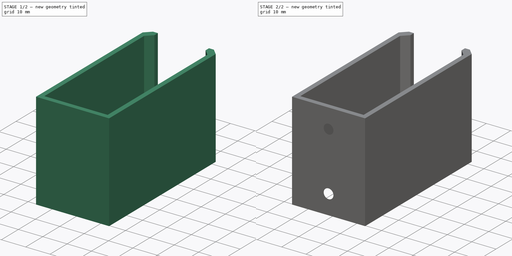
[diagram: build sequence overview — one tinted view per stage of 2, left to right]
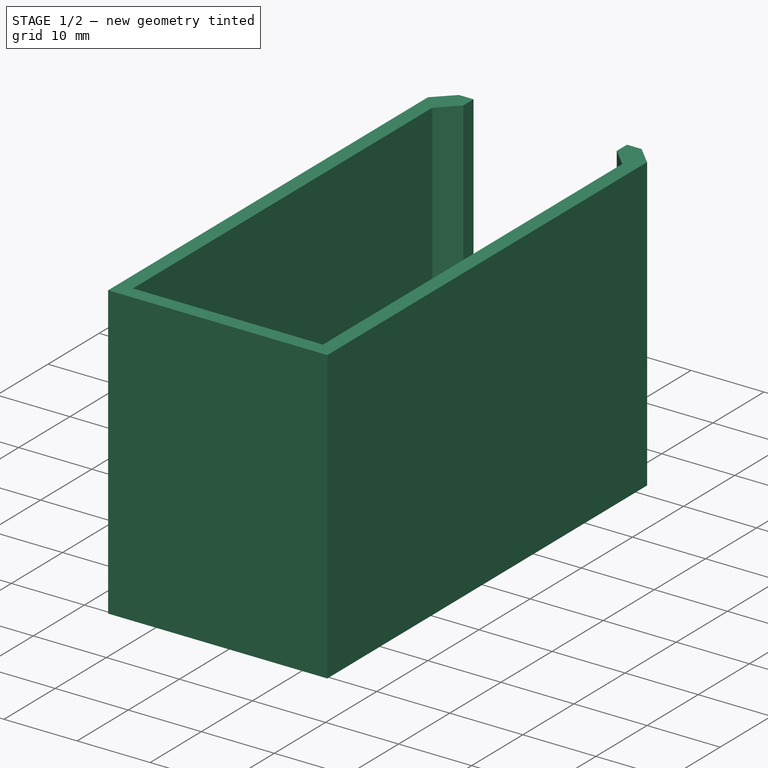
[diagram: stage 1 of 2 — iso view after this stage's code; geometry added in this stage tinted green]
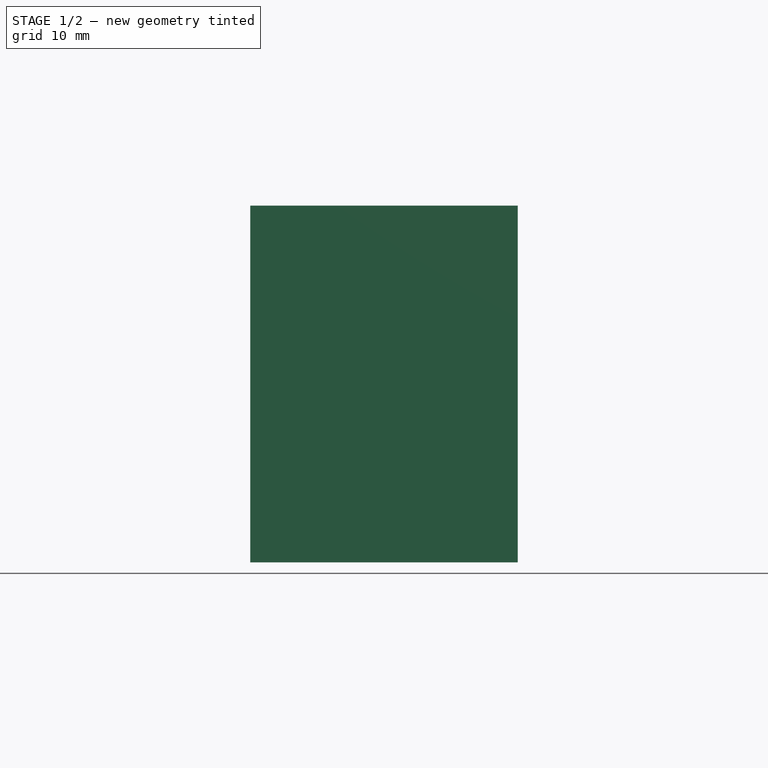
[diagram: stage 1 of 2 — front view after this stage's code; geometry added in this stage tinted green]
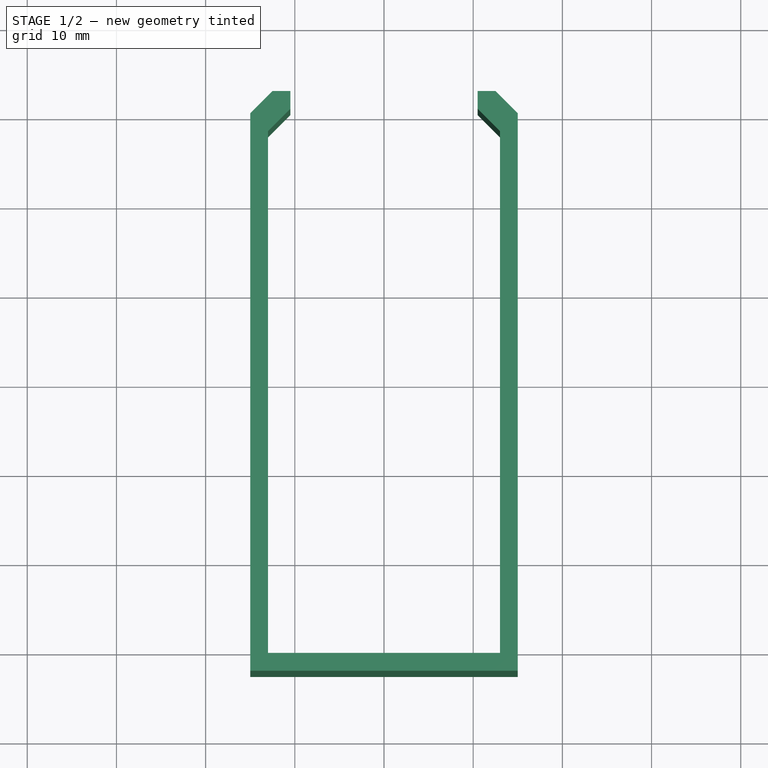
[diagram: stage 1 of 2 — top view after this stage's code; geometry added in this stage tinted green]
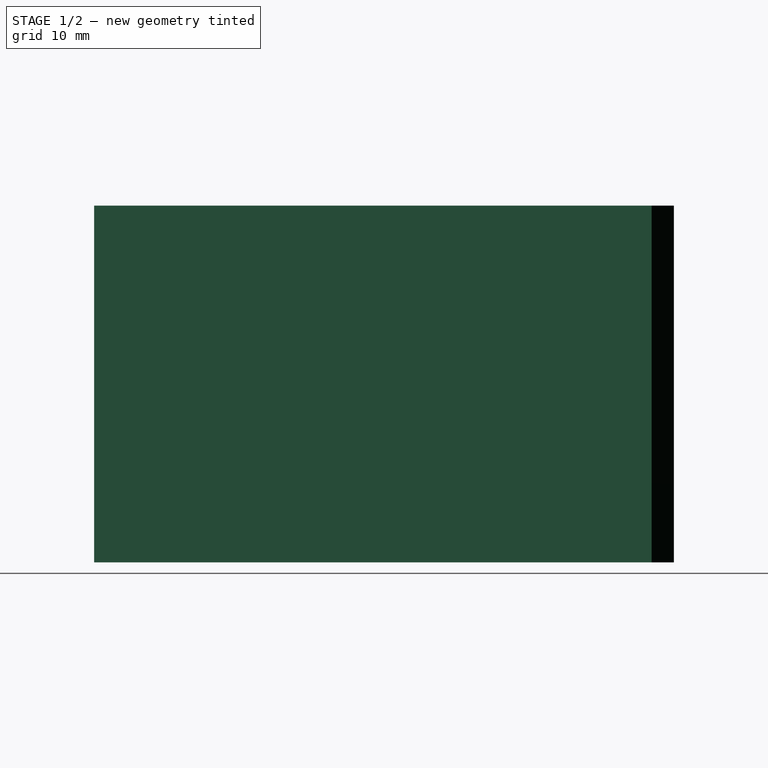
[diagram: stage 1 of 2 — right view after this stage's code; geometry added in this stage tinted green]
FCSTD DOCUMENT  (FreeCAD 1.0R39319 (Git))
Label: RPI_case_holder
License: All rights reserved
LicenseURL: https://en.wikipedia.org/wiki/All_rights_reserved
objects: Sketcher::SketchObject×2, PartDesign::Pad×1, PartDesign::Hole×1, PartDesign::Body×1
note: 11 computed .brp shape members not serialized (recipe doc carries the construction recipe); baked Part::Feature solids carry a one-line shape summary decoded from their .brp

FEATURE [Sketcher::SketchObject] Sketch
  ArcFitTolerance = 1e-06
  AttachmentSupport = -> [XY_Plane]
  FullyConstrained = true
  MakeInternals = false
  MapMode = 5
  sketch-geometry (26):
    g0: LineSegment StartX=-13 StartY=-30.5 StartZ=0 EndX=13 EndY=-30.5 EndZ=0
    g1: LineSegment StartX=13 StartY=-30.5 StartZ=0 EndX=13 EndY=28 EndZ=0
    g2: LineSegment [constr] StartX=10.5 StartY=30.5 StartZ=0 EndX=-10.5 EndY=30.5 EndZ=0
    g3: LineSegment StartX=-13 StartY=28 StartZ=0 EndX=-13 EndY=-30.5 EndZ=0
    g4: GeomPoint [constr] X=0 Y=0 Z=0
    g5: LineSegment StartX=-15 StartY=30 StartZ=0 EndX=-15 EndY=-32.5 EndZ=0
    g6: LineSegment StartX=-15 StartY=-32.5 StartZ=0 EndX=15 EndY=-32.5 EndZ=0
    g7: LineSegment StartX=15 StartY=-32.5 StartZ=0 EndX=15 EndY=30 EndZ=0
    g8: GeomPoint [constr] X=0 Y=0 Z=0
    g9: ArcOfCircle [constr] CenterX=-10.5 CenterY=28 CenterZ=0 NormalX=0 NormalY=0 NormalZ=1 AngleXU=0 Radius=2.5 StartAngle=1.5708 EndAngle=3.14159
    g10: GeomPoint [constr] X=-13 Y=30.5 Z=0
    g11: LineSegment StartX=-10.5 StartY=30.5 StartZ=0 EndX=-13 EndY=28 EndZ=0
    g12: ArcOfCircle [constr] CenterX=10.5 CenterY=28 CenterZ=0 NormalX=0 NormalY=0 NormalZ=1 AngleXU=0 Radius=2.5 StartAngle=5e-16 EndAngle=1.5708
    g13: GeomPoint [constr] X=13 Y=30.5 Z=0
    g14: LineSegment StartX=13 StartY=28 StartZ=0 EndX=10.5 EndY=30.5 EndZ=0
    g15: LineSegment StartX=-10.5 StartY=32.5 StartZ=0 EndX=-12.5 EndY=32.5 EndZ=0
    g16: LineSegment StartX=12.5 StartY=32.5 StartZ=0 EndX=10.5 EndY=32.5 EndZ=0
    g17: LineSegment [constr] StartX=10.5 StartY=32.5 StartZ=0 EndX=-10.5 EndY=32.5 EndZ=0
    g18: LineSegment StartX=-10.5 StartY=30.5 StartZ=0 EndX=-10.5 EndY=32.5 EndZ=0
    g19: LineSegment StartX=10.5 StartY=30.5 StartZ=0 EndX=10.5 EndY=32.5 EndZ=0
    g20: ArcOfCircle [constr] CenterX=-12.5 CenterY=30 CenterZ=0 NormalX=0 NormalY=0 NormalZ=1 AngleXU=0 Radius=2.5 StartAngle=1.5708 EndAngle=3.14159
    g21: GeomPoint [constr] X=-15 Y=32.5 Z=0
    g22: LineSegment StartX=-12.5 StartY=32.5 StartZ=0 EndX=-15 EndY=30 EndZ=0
    g23: ArcOfCircle [constr] CenterX=12.5 CenterY=30 CenterZ=0 NormalX=0 NormalY=0 NormalZ=1 AngleXU=0 Radius=2.5 StartAngle=0 EndAngle=1.5708
    g24: GeomPoint [constr] X=15 Y=32.5 Z=0
    g25: LineSegment StartX=15 StartY=30 StartZ=0 EndX=12.5 EndY=32.5 EndZ=0
  constraints (58):
    c: Coincident(g0,g1)
    c: Coincident(g3,g0)
    c: Horizontal(g0)
    c: Horizontal(g2)
    c: Vertical(g1)
    c: Vertical(g3)
    c: Symmetric(g13,g0,g4)
    c: Distance(g1,g3) = 26
    c: Distance(g0,g10) = 61
    c: Coincident(g4,g-1)
    c: Coincident(g5,g6)
    c: Coincident(g6,g7)
    c: Vertical(g5)
    c: Vertical(g7)
    c: Horizontal(g6)
    c: Symmetric(g7,g21,g8)
    c: Coincident(g8,g4)
    c: DistanceY(g10,g21) = 2
    c: DistanceX(g21,g10) = 2
    c: PointOnObject(g10,g3)
    c: PointOnObject(g10,g2)
    c: Tangent(g3,g9) = -1.5708
    c: Tangent(g2,g9) = -1.5708
    c: Coincident(g11,g3)
    c: Coincident(g11,g2)
    c: PointOnObject(g13,g2)
    c: PointOnObject(g13,g1)
    c: Tangent(g2,g12) = -1.5708
    c: Tangent(g1,g12) = -1.5708
    c: Coincident(g14,g2)
    c: Coincident(g14,g1)
    c: DistanceX(g2,g13) = 2.5
    c: DistanceX(g10,g2) = 2.5
    c: Coincident(g17,g15)
    c: Horizontal(g15)
    c: Coincident(g16,g17)
    c: Horizontal(g16)
    c: Horizontal(g17)
    c: Coincident(g18,g2)
    c: Coincident(g18,g15)
    c: Coincident(g19,g2)
    c: Coincident(g19,g16)
    c: Vertical(g18)
    c: Vertical(g19)
    c: PointOnObject(g21,g15)
    c: PointOnObject(g21,g5)
    c: Tangent(g15,g20) = -1.5708
    c: Tangent(g5,g20) = -1.5708
    c: Coincident(g22,g15)
    c: Coincident(g22,g5)
    c: PointOnObject(g24,g16)
    c: PointOnObject(g24,g7)
    c: Tangent(g16,g23) = -1.5708
    c: Tangent(g7,g23) = -1.5708
    c: Coincident(g25,g16)
    c: Coincident(g25,g7)
    c: DistanceX(g16,g24) = 2.5
    c: DistanceX(g21,g15) = 2.5
FEATURE [PartDesign::Pad] Pad
  Direction = (0,0,1)
  Length = 40
  Length2 = 10
  Midplane = true
  Profile = -> Sketch
  ReferenceAxis = -> Sketch [N_Axis]
  Refine = true
  Suppressed = false
  Type = 0
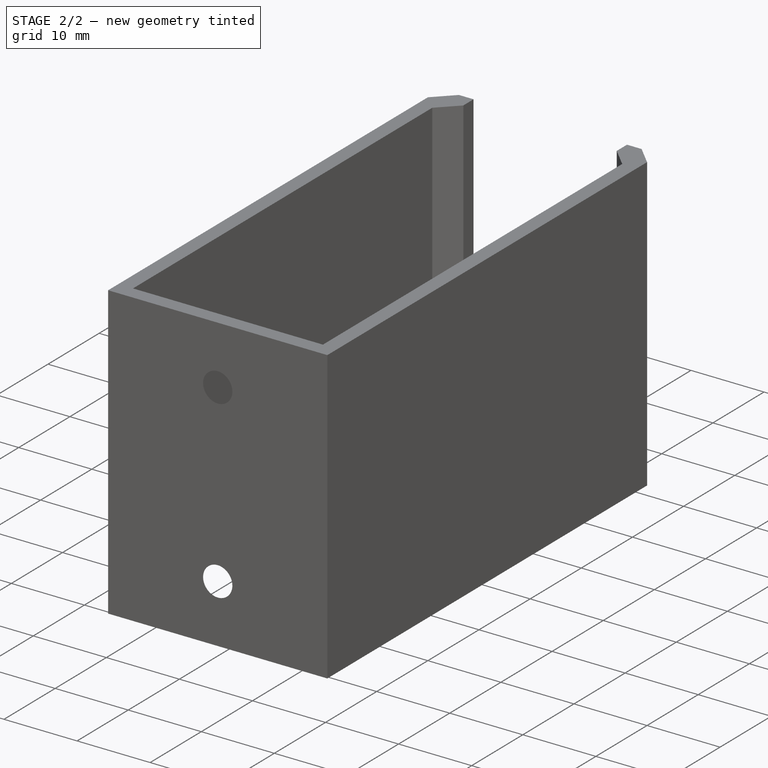
[diagram: stage 2 of 2 — iso view after this stage's code; geometry added in this stage tinted green]
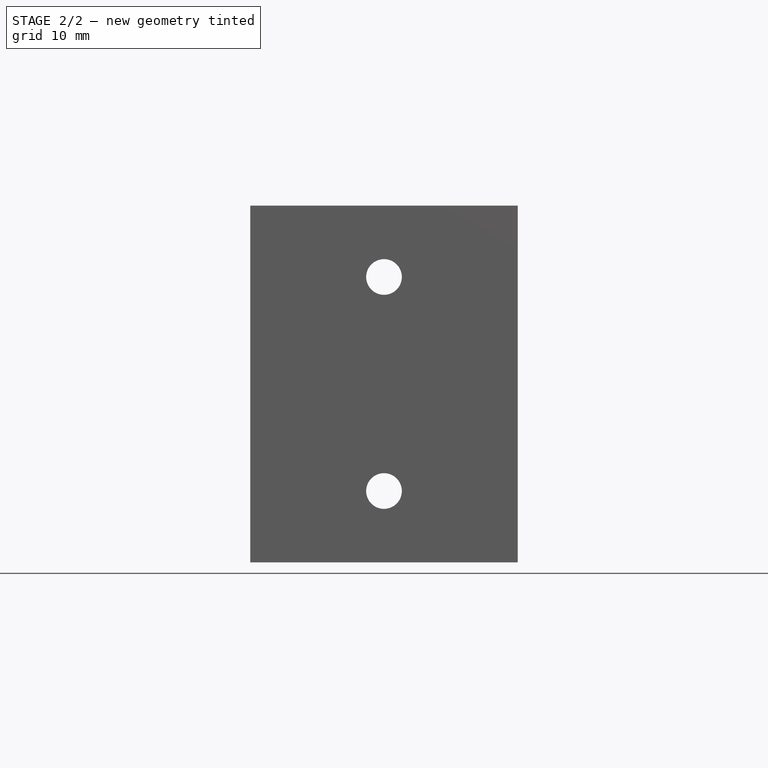
[diagram: stage 2 of 2 — front view after this stage's code; geometry added in this stage tinted green]
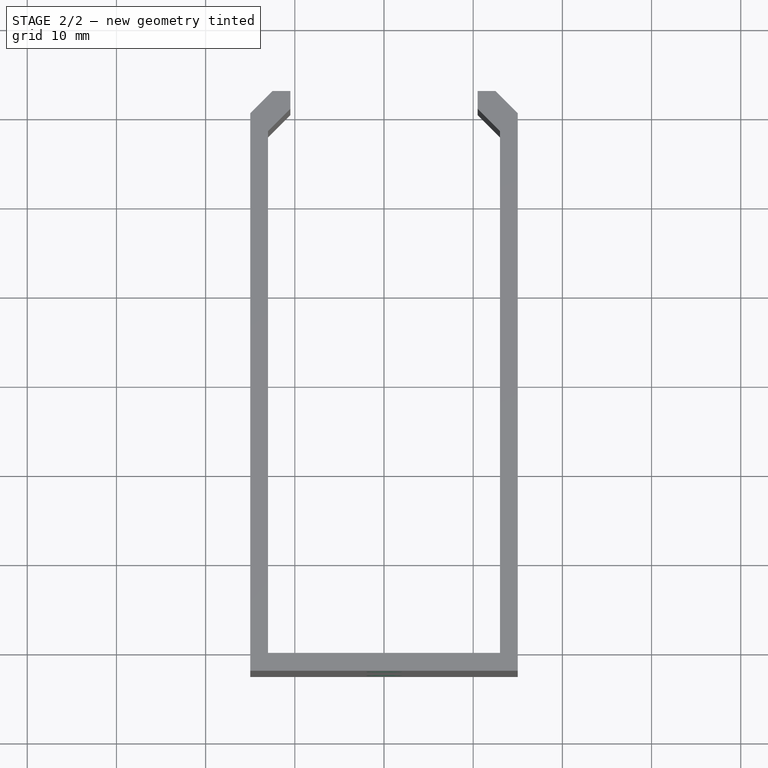
[diagram: stage 2 of 2 — top view after this stage's code; geometry added in this stage tinted green]
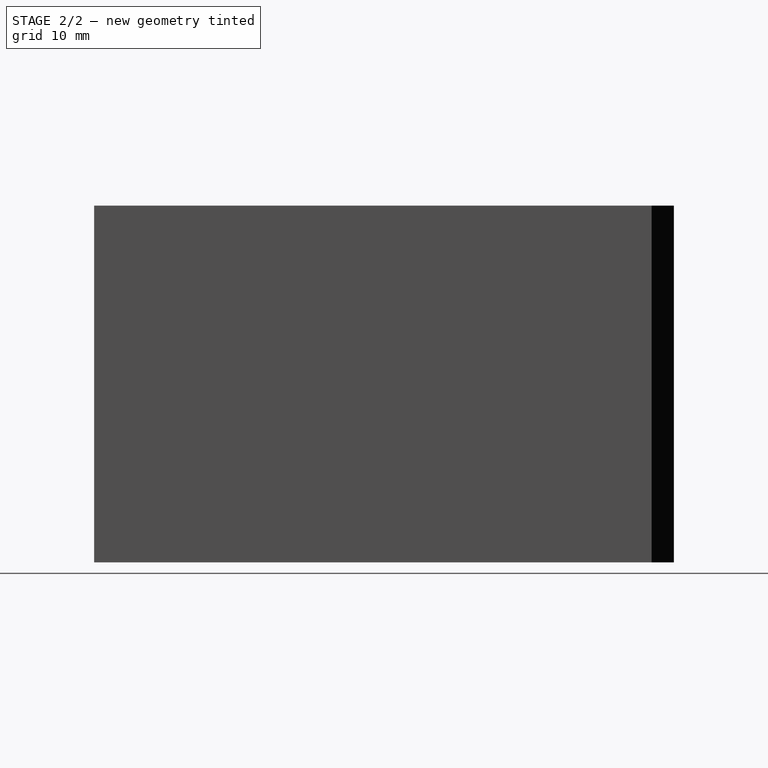
[diagram: stage 2 of 2 — right view after this stage's code; geometry added in this stage tinted green]
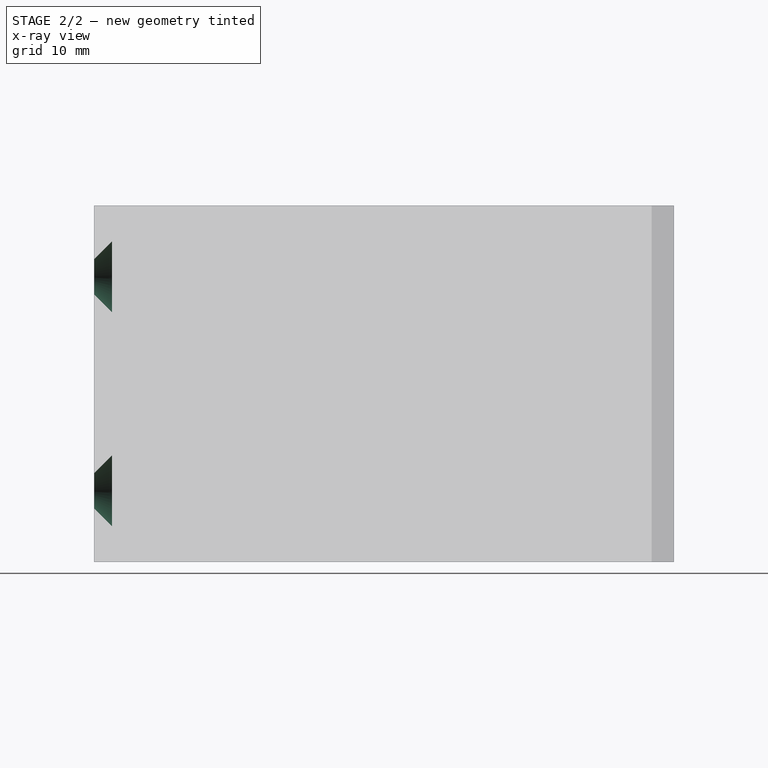
[diagram: stage 2 of 2 — x-ray composite at the right view; earlier geometry ghosted, this stage's added geometry solid]
FEATURE [Sketcher::SketchObject] Sketch002
  ArcFitTolerance = 1e-06
  AttachmentSupport = -> [Pad]
  FullyConstrained = true
  MakeInternals = false
  MapMode = 5
  Placement = pos=(0,-30.5,0) rot=(0,0.707107,0.707107;3.14159rad)
  sketch-geometry (4):
    g0: Circle CenterX=0 CenterY=12 CenterZ=0 NormalX=0 NormalY=0 NormalZ=1 AngleXU=0 Radius=2
    g1: Circle CenterX=0 CenterY=-12 CenterZ=0 NormalX=0 NormalY=0 NormalZ=1 AngleXU=0 Radius=2
    g2: LineSegment [constr] StartX=0 StartY=12 StartZ=0 EndX=0 EndY=0 EndZ=0
    g3: LineSegment [constr] StartX=0 StartY=0 StartZ=0 EndX=0 EndY=-12 EndZ=0
  constraints (10):
    c: PointOnObject(g0,g-2)
    c: PointOnObject(g1,g-2)
    c: Coincident(g2,g0)
    c: Coincident(g2,g-1)
    c: Coincident(g3,g2)
    c: Coincident(g3,g1)
    c: Equal(g2,g3)
    c: Equal(g0,g1)
    c: DistanceY(g2,g2) = 12
    c: Diameter(g0) = 4
FEATURE [PartDesign::Hole] Hole
  BaseFeature = -> Pad
  CustomThreadClearance = 0
  Depth = 25
  DepthType = 0
  Diameter = 4
  DrillForDepth = false
  DrillPoint = 1
  DrillPointAngle = 118
  HoleCutCountersinkAngle = 90
  HoleCutCustomValues = false
  HoleCutDepth = 0
  HoleCutDiameter = 8
  HoleCutType = 2
  ModelThread = false
  Profile = -> Sketch002
  Refine = true
  Suppressed = false
  Tapered = false
  TaperedAngle = 90
  ThreadClass = 0
  ThreadDepth = 25
  ThreadDepthType = 0
  ThreadDirection = 0
  ThreadFit = 0
  ThreadSize = 0
  ThreadType = 0
  Threaded = false
  UseCustomThreadClearance = false
FEATURE [PartDesign::Body] Body
  AllowCompound = false
  Group = -> [Sketch,Pad,Sketch002,Hole]
  Origin = -> Origin
  Tip = -> Hole
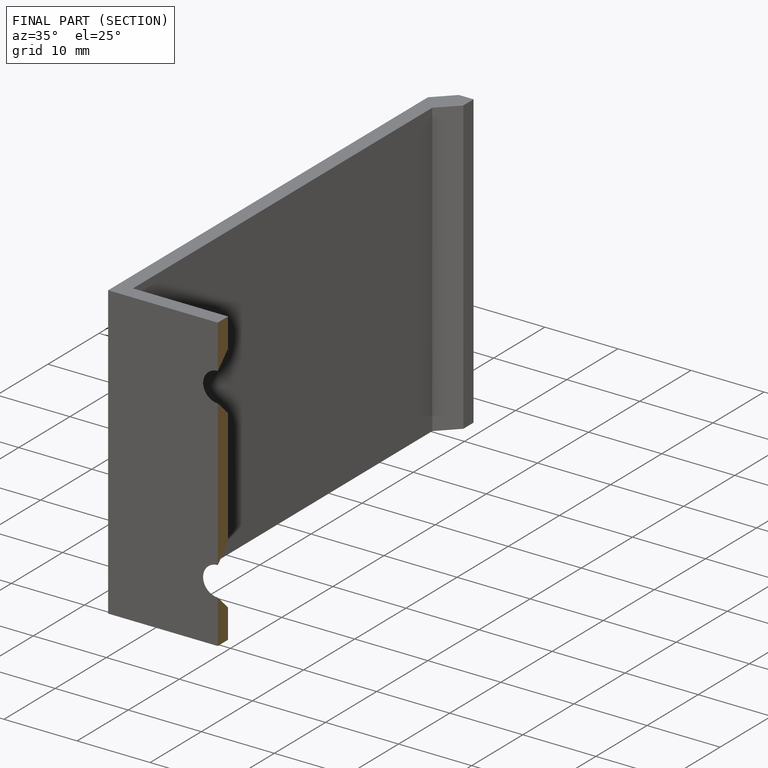
[diagram: finished part — half-section view (interior)]
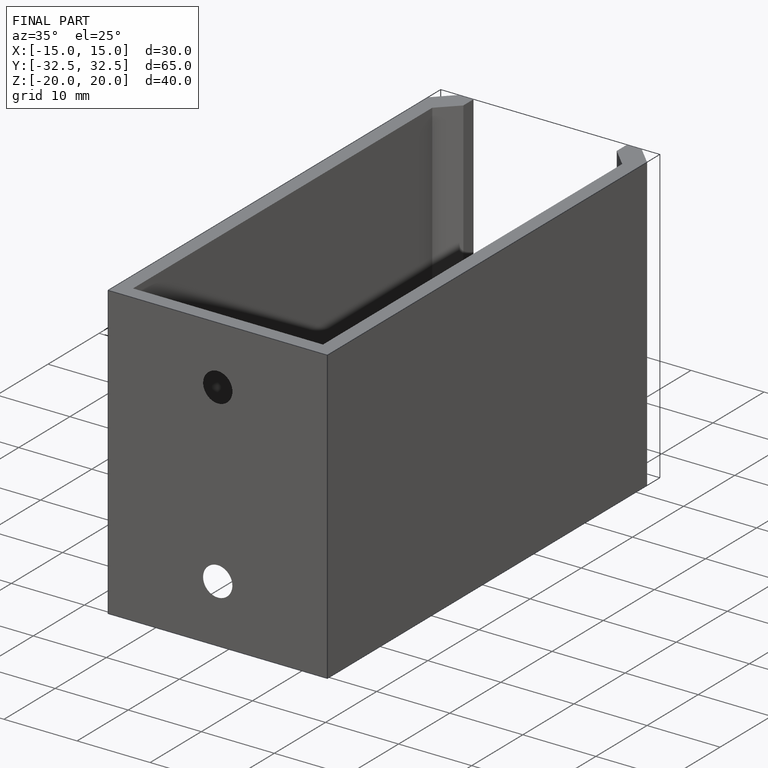
[diagram: finished part — iso view with bounding-box wireframe]
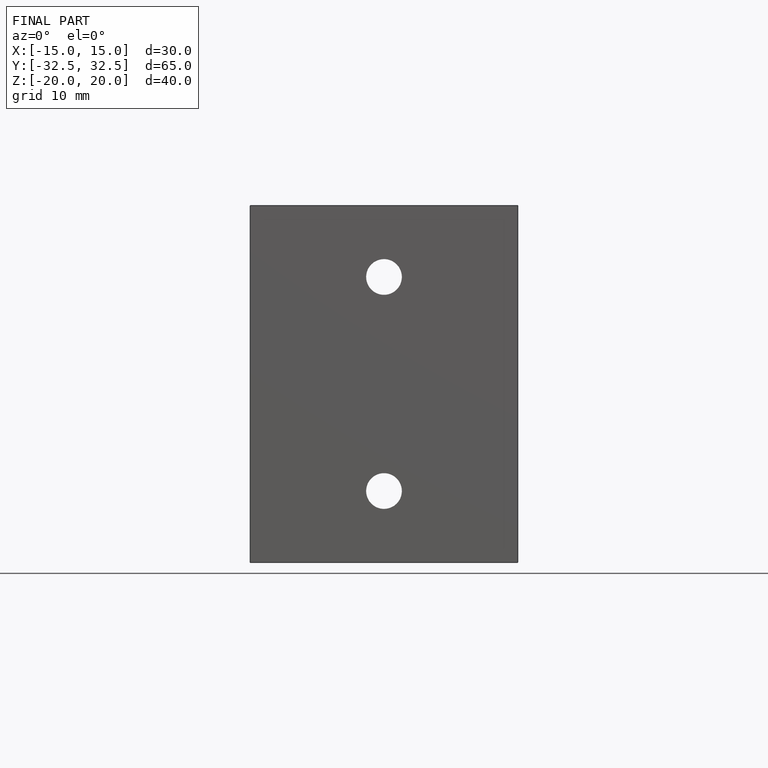
[diagram: finished part — front view with bounding-box wireframe]
